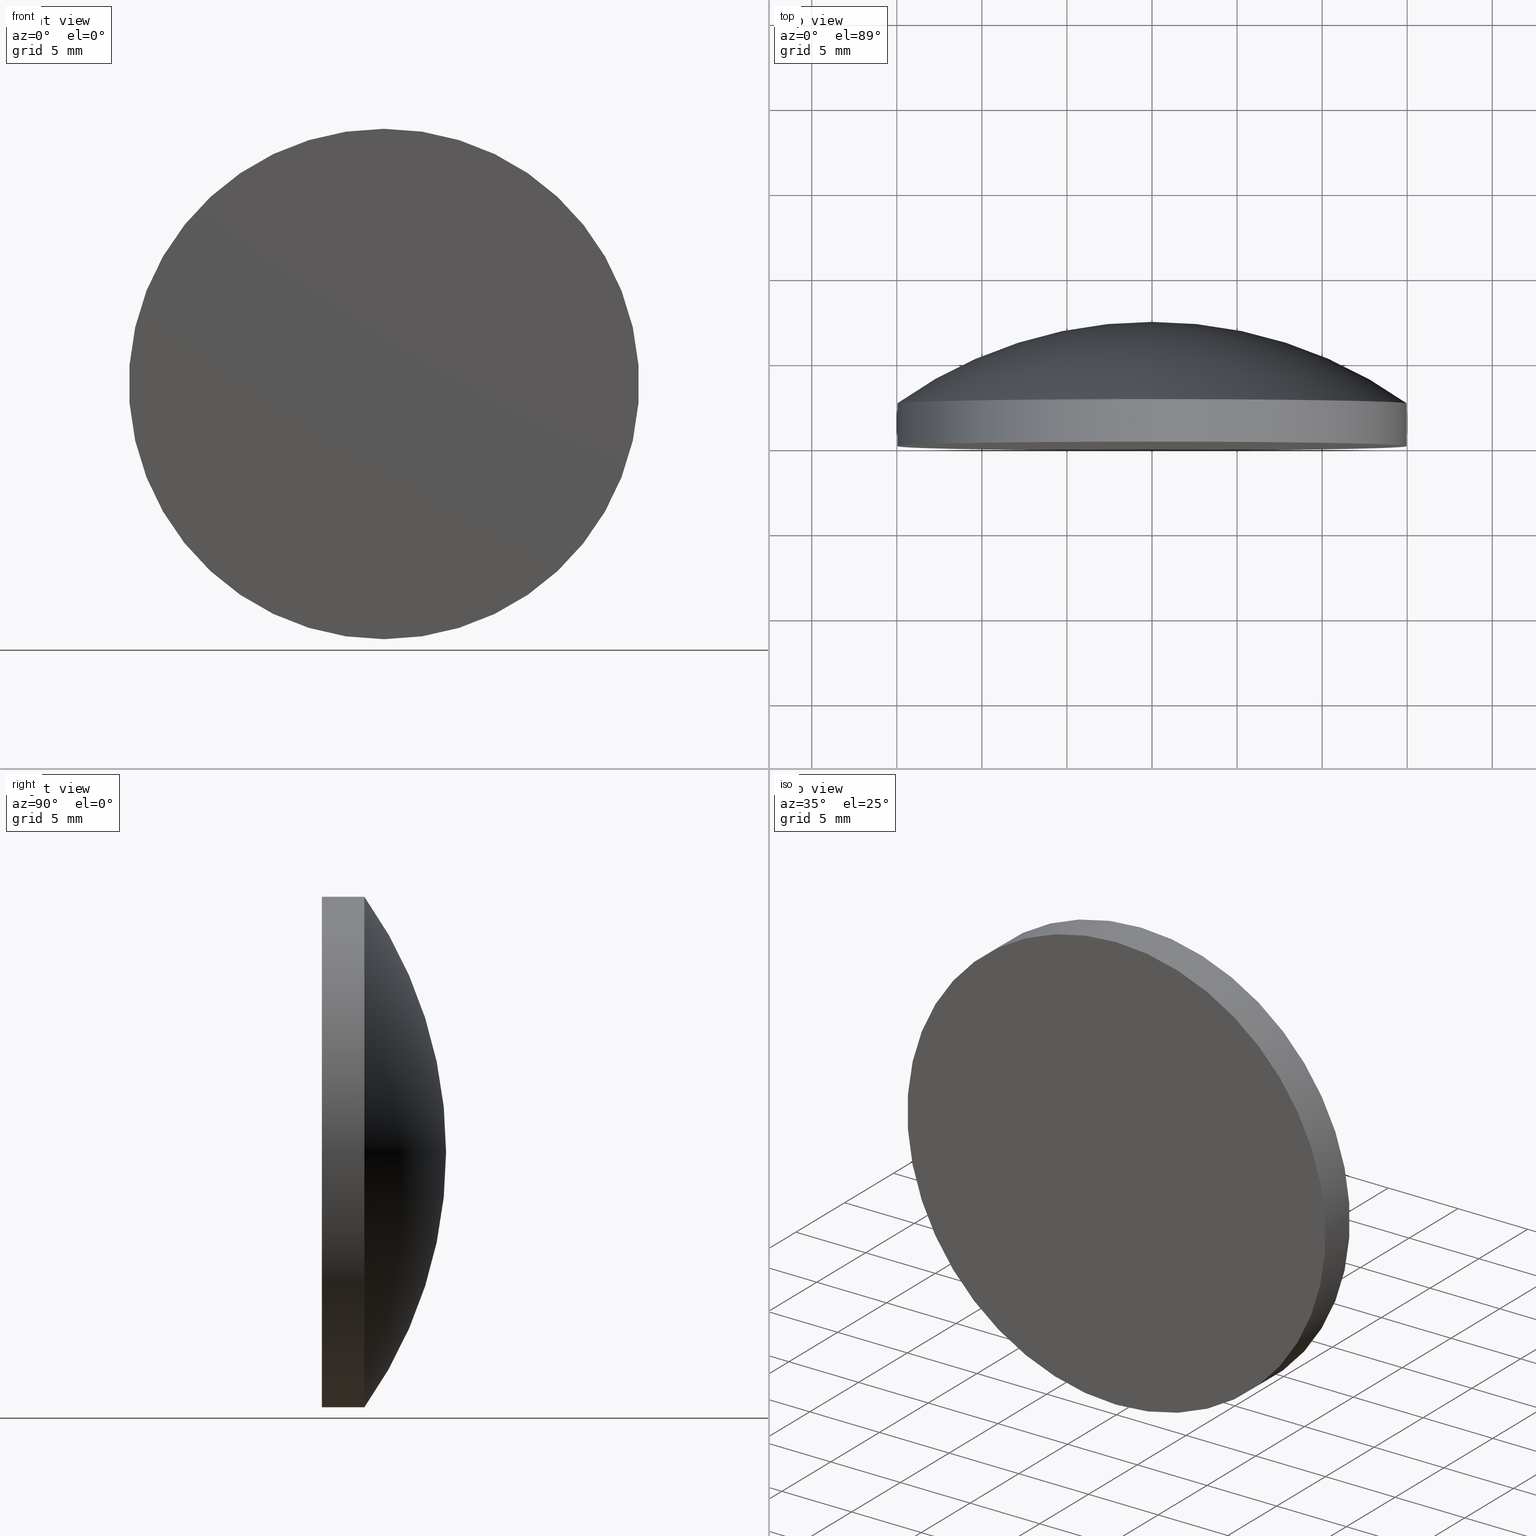
[diagram: canonical four-view strip — front | top / right | iso, engineering-drawing reading convention]
A machine part, canonical four-view strip (front | top / right | iso — engineering-drawing reading convention). The complete STEP part file that produces these views, byte-faithful:
ISO-10303-21;
HEADER;
FILE_DESCRIPTION (( 'STEP AP203' ),
    '1' );
FILE_NAME ('100595.STEP',
    '2024-05-10T01:53:44',
    ( '' ),
    ( '' ),
    'SwSTEP 2.0',
    'SolidWorks 2020',
    '' );
FILE_SCHEMA (( 'CONFIG_CONTROL_DESIGN' ));
ENDSEC;

DATA;
#1 = CIRCLE ( 'NONE', #146, 15.00000000000000000 ) ;
#2 = CC_DESIGN_APPROVAL ( #77, ( #112 ) ) ;
#3 = DIRECTION ( 'NONE',  ( 1.000000000000000000, 0.000000000000000000, 1.224646799147353207E-16 ) ) ;
#4 = VERTEX_POINT ( 'NONE', #62 ) ;
#5 = CARTESIAN_POINT ( 'NONE',  ( 0.000000000000000000, 2.499999999999998224, 15.00000000000000178 ) ) ;
#6 = DIRECTION ( 'NONE',  ( -0.000000000000000000, 1.000000000000000000, -0.000000000000000000 ) ) ;
#7 = APPROVAL_STATUS ( 'not_yet_approved' ) ;
#8 = PERSON_AND_ORGANIZATION ( #15, #194 ) ;
#9 = ORIENTED_EDGE ( 'NONE', *, *, #199, .T. ) ;
#10 = LINE ( 'NONE', #179, #184 ) ;
#11 = APPROVAL_ROLE ( '' ) ;
#12 = ORIENTED_EDGE ( 'NONE', *, *, #161, .F. ) ;
#13 = DIRECTION ( 'NONE',  ( 0.000000000000000000, 0.000000000000000000, 1.000000000000000000 ) ) ;
#14 = LOCAL_TIME ( 9, 53, 44.00000000000000000, #56 ) ;
#15 = PERSON ( 'δָ��', 'δָ��', 'δָ��', ('δָ��'), ('δָ��'), ('δָ��') ) ;
#16 = CARTESIAN_POINT ( 'NONE',  ( -9.797125862820881380E-20, -18.53999998761622692, 0.0007999960371955425198 ) ) ;
#17 = DIRECTION ( 'NONE',  ( 0.000000000000000000, 0.000000000000000000, 1.000000000000000000 ) ) ;
#18 = CLOSED_SHELL ( 'NONE', ( #71, #111, #36, #147, #94 ) ) ;
#19 = EDGE_CURVE ( 'NONE', #4, #167, #163, .T. ) ;
#20 =( NAMED_UNIT ( * ) PLANE_ANGLE_UNIT ( ) SI_UNIT ( $, .RADIAN. ) );
#21 = CARTESIAN_POINT ( 'NONE',  ( 0.000000000000000000, -1.734723475976807094E-15, 0.000000000000000000 ) ) ;
#22 = LOCAL_TIME ( 9, 53, 44.00000000000000000, #177 ) ;
#23 = DIRECTION ( 'NONE',  ( 0.000000000000000000, 0.000000000000000000, 1.000000000000000000 ) ) ;
#24 = EDGE_CURVE ( 'NONE', #4, #48, #83, .T. ) ;
#25 = CARTESIAN_POINT ( 'NONE',  ( 0.000000000000000000, -18.53999998761622692, -0.0007999960371955425198 ) ) ;
#26 = PERSON_AND_ORGANIZATION ( #15, #194 ) ;
#27 = EDGE_LOOP ( 'NONE', ( #160, #131, #118, #12 ) ) ;
#28 = APPROVAL_DATE_TIME ( #125, #35 ) ;
#29 = CIRCLE ( 'NONE', #76, 15.00000000000000000 ) ;
#30 = EDGE_LOOP ( 'NONE', ( #32, #133 ) ) ;
#31 = CARTESIAN_POINT ( 'NONE',  ( 0.000000000000000000, -18.53999998761622692, 0.000000000000000000 ) ) ;
#32 = ORIENTED_EDGE ( 'NONE', *, *, #24, .F. ) ;
#33 = CC_DESIGN_PERSON_AND_ORGANIZATION_ASSIGNMENT ( #106, #59, ( #112 ) ) ;
#34 = AXIS2_PLACEMENT_3D ( 'NONE', #16, #3, #65 ) ;
#35 = APPROVAL ( #7, 'δָ��' ) ;
#36 = ADVANCED_FACE ( 'NONE', ( #74 ), #72, .T. ) ;
#37 = APPLICATION_PROTOCOL_DEFINITION ( 'international standard', 'config_control_design', 1994, #95 ) ;
#38 = APPROVAL_STATUS ( 'not_yet_approved' ) ;
#39 = CC_DESIGN_PERSON_AND_ORGANIZATION_ASSIGNMENT ( #117, #169, ( #104 ) ) ;
#40 = DIRECTION ( 'NONE',  ( 1.000000000000000000, 0.000000000000000000, 0.000000000000000000 ) ) ;
#41 = APPROVAL_DATE_TIME ( #68, #43 ) ;
#42 = AXIS2_PLACEMENT_3D ( 'NONE', #79, #145, #99 ) ;
#43 = APPROVAL ( #124, 'δָ��' ) ;
#44 = CALENDAR_DATE ( 2024, 10, 5 ) ;
#45 = VERTEX_POINT ( 'NONE', #197 ) ;
#46 = APPROVAL_ROLE ( '' ) ;
#47 = LOCAL_TIME ( 9, 53, 44.00000000000000000, #58 ) ;
#48 = VERTEX_POINT ( 'NONE', #75 ) ;
#49 = PRODUCT_RELATED_PRODUCT_CATEGORY ( 'detail', '', ( #104 ) ) ;
#50 = PRODUCT_DEFINITION_FORMATION_WITH_SPECIFIED_SOURCE ( '�κ�', '', #104, .NOT_KNOWN. ) ;
#51 = APPROVAL_PERSON_ORGANIZATION ( #26, #77, #11 ) ;
#52 = DIRECTION ( 'NONE',  ( 0.000000000000000000, -1.000000000000000000, 0.000000000000000000 ) ) ;
#53 = DIRECTION ( 'NONE',  ( 0.000000000000000000, 0.000000000000000000, 1.000000000000000000 ) ) ;
#54 = CC_DESIGN_PERSON_AND_ORGANIZATION_ASSIGNMENT ( #87, #85, ( #50 ) ) ;
#55 = APPROVAL_PERSON_ORGANIZATION ( #144, #35, #134 ) ;
#56 = COORDINATED_UNIVERSAL_TIME_OFFSET ( 8, 0, .AHEAD. ) ;
#57 = COORDINATED_UNIVERSAL_TIME_OFFSET ( 8, 0, .AHEAD. ) ;
#58 = COORDINATED_UNIVERSAL_TIME_OFFSET ( 8, 0, .AHEAD. ) ;
#59 = PERSON_AND_ORGANIZATION_ROLE ( 'classification_officer' ) ;
#60 = CIRCLE ( 'NONE', #142, 25.84000000000000696 ) ;
#61 = AXIS2_PLACEMENT_3D ( 'NONE', #141, #200, #127 ) ;
#62 = CARTESIAN_POINT ( 'NONE',  ( 0.000000000000000000, -1.734723475976807094E-15, 15.00000000000000000 ) ) ;
#63 = CARTESIAN_POINT ( 'NONE',  ( 0.000000000000000000, 7.299999999999999822, 15.00000000000000000 ) ) ;
#64 = CARTESIAN_POINT ( 'NONE',  ( 0.000000000000000000, -9.184850993605147944E-16, 0.000000000000000000 ) ) ;
#65 = DIRECTION ( 'NONE',  ( 1.224646799147353207E-16, 0.000000000000000000, -1.000000000000000000 ) ) ;
#66 = APPLICATION_CONTEXT ( 'configuration controlled 3d designs of mechanical parts and assemblies' ) ;
#67 = AXIS2_PLACEMENT_3D ( 'NONE', #96, #155, #17 ) ;
#68 = DATE_AND_TIME ( #123, #165 ) ;
#69 = CARTESIAN_POINT ( 'NONE',  ( 0.000000000000000000, -18.53999998761622692, 0.000000000000000000 ) ) ;
#70 = DIRECTION ( 'NONE',  ( 0.000000000000000000, 0.000000000000000000, 1.000000000000000000 ) ) ;
#71 = ADVANCED_FACE ( 'NONE', ( #126 ), #93, .T. ) ;
#72 = TOROIDAL_SURFACE ( 'NONE', #170, -0.0007999960371955425198, 25.84000000000000696 ) ;
#73 = ORIENTED_EDGE ( 'NONE', *, *, #143, .T. ) ;
#74 = FACE_OUTER_BOUND ( 'NONE', #152, .T. ) ;
#75 = CARTESIAN_POINT ( 'NONE',  ( 1.836970198721029589E-15, -1.734723475976807094E-15, -15.00000000000000000 ) ) ;
#76 = AXIS2_PLACEMENT_3D ( 'NONE', #21, #6, #171 ) ;
#77 = APPROVAL ( #38, 'δָ��' ) ;
#78 = PLANE ( 'NONE',  #178 ) ;
#79 = CARTESIAN_POINT ( 'NONE',  ( 0.000000000000000000, 2.499999999999997780, 0.000000000000000000 ) ) ;
#80 = ORIENTED_EDGE ( 'NONE', *, *, #132, .F. ) ;
#81 = DATE_AND_TIME ( #44, #47 ) ;
#82 = FACE_OUTER_BOUND ( 'NONE', #27, .T. ) ;
#83 = CIRCLE ( 'NONE', #154, 15.00000000000000000 ) ;
#84 =( LENGTH_UNIT ( ) NAMED_UNIT ( * ) SI_UNIT ( .MILLI., .METRE. ) );
#85 = PERSON_AND_ORGANIZATION_ROLE ( 'design_supplier' ) ;
#86 = CC_DESIGN_PERSON_AND_ORGANIZATION_ASSIGNMENT ( #136, #120, ( #50 ) ) ;
#87 = PERSON_AND_ORGANIZATION ( #15, #194 ) ;
#88 = ADVANCED_BREP_SHAPE_REPRESENTATION ( '100595', ( #148, #164 ), #201 ) ;
#89 = UNCERTAINTY_MEASURE_WITH_UNIT (LENGTH_MEASURE( 1.000000000000000082E-05 ), #84, 'distance_accuracy_value', 'NONE');
#90 = CIRCLE ( 'NONE', #34, 25.84000000000000696 ) ;
#91 = DIRECTION ( 'NONE',  ( -0.000000000000000000, 1.000000000000000000, -0.000000000000000000 ) ) ;
#92 = CC_DESIGN_SECURITY_CLASSIFICATION ( #112, ( #50 ) ) ;
#93 = CYLINDRICAL_SURFACE ( 'NONE', #61, 15.00000000000000000 ) ;
#94 = ADVANCED_FACE ( 'NONE', ( #82 ), #168, .T. ) ;
#95 = APPLICATION_CONTEXT ( 'configuration controlled 3d designs of mechanical parts and assemblies' ) ;
#96 = CARTESIAN_POINT ( 'NONE',  ( 0.000000000000000000, 7.299999999999999822, 0.000000000000000000 ) ) ;
#97 = APPLICATION_PROTOCOL_DEFINITION ( 'international standard', 'config_control_design', 1994, #66 ) ;
#98 = DATE_AND_TIME ( #176, #182 ) ;
#99 = DIRECTION ( 'NONE',  ( 0.000000000000000000, 0.000000000000000000, 1.000000000000000000 ) ) ;
#100 = ORIENTED_EDGE ( 'NONE', *, *, #143, .F. ) ;
#101 = MECHANICAL_CONTEXT ( 'NONE', #66, 'mechanical' ) ;
#102 = APPROVAL_DATE_TIME ( #98, #77 ) ;
#103 = DATE_AND_TIME ( #172, #22 ) ;
#104 = PRODUCT ( '100595', '100595', '', ( #101 ) ) ;
#105 = ORIENTED_EDGE ( 'NONE', *, *, #161, .T. ) ;
#106 = PERSON_AND_ORGANIZATION ( #15, #194 ) ;
#107 = ORIENTED_EDGE ( 'NONE', *, *, #19, .F. ) ;
#108 = EDGE_CURVE ( 'NONE', #48, #4, #29, .T. ) ;
#109 = CC_DESIGN_APPROVAL ( #35, ( #157 ) ) ;
#110 = DIRECTION ( 'NONE',  ( -0.000000000000000000, 1.000000000000000000, -0.000000000000000000 ) ) ;
#111 = ADVANCED_FACE ( 'NONE', ( #185 ), #190, .T. ) ;
#112 = SECURITY_CLASSIFICATION ( '', '', #193 ) ;
#113 = VECTOR ( 'NONE', #153, 1000.000000000000000 ) ;
#114 = DIRECTION ( 'NONE',  ( 0.000000000000000000, -0.000000000000000000, -1.000000000000000000 ) ) ;
#115 = ORIENTED_EDGE ( 'NONE', *, *, #132, .T. ) ;
#116 = AXIS2_PLACEMENT_3D ( 'NONE', #69, #121, #173 ) ;
#117 = PERSON_AND_ORGANIZATION ( #15, #194 ) ;
#118 = ORIENTED_EDGE ( 'NONE', *, *, #19, .T. ) ;
#119 = CALENDAR_DATE ( 2024, 10, 5 ) ;
#120 = PERSON_AND_ORGANIZATION_ROLE ( 'creator' ) ;
#121 = DIRECTION ( 'NONE',  ( -0.000000000000000000, 1.000000000000000000, -0.000000000000000000 ) ) ;
#122 = CARTESIAN_POINT ( 'NONE',  ( 0.000000000000000000, 0.000000000000000000, 0.000000000000000000 ) ) ;
#123 = CALENDAR_DATE ( 2024, 10, 5 ) ;
#124 = APPROVAL_STATUS ( 'not_yet_approved' ) ;
#125 = DATE_AND_TIME ( #119, #14 ) ;
#126 = FACE_OUTER_BOUND ( 'NONE', #175, .T. ) ;
#127 = DIRECTION ( 'NONE',  ( 0.000000000000000000, 0.000000000000000000, 1.000000000000000000 ) ) ;
#128 = CARTESIAN_POINT ( 'NONE',  ( 0.000000000000000000, -1.734723475976807094E-15, 0.000000000000000000 ) ) ;
#129 = CC_DESIGN_DATE_AND_TIME_ASSIGNMENT ( #81, #151, ( #157 ) ) ;
#130 = FACE_OUTER_BOUND ( 'NONE', #30, .T. ) ;
#131 = ORIENTED_EDGE ( 'NONE', *, *, #108, .T. ) ;
#132 = EDGE_CURVE ( 'NONE', #167, #45, #138, .T. ) ;
#133 = ORIENTED_EDGE ( 'NONE', *, *, #108, .F. ) ;
#134 = APPROVAL_ROLE ( '' ) ;
#135 = DIRECTION ( 'NONE',  ( -1.000000000000000000, 0.000000000000000000, 0.000000000000000000 ) ) ;
#136 = PERSON_AND_ORGANIZATION ( #15, #194 ) ;
#137 = DIRECTION ( 'NONE',  ( -0.000000000000000000, 1.000000000000000000, -0.000000000000000000 ) ) ;
#138 = CIRCLE ( 'NONE', #42, 15.00000000000000000 ) ;
#139 = DESIGN_CONTEXT ( 'detailed design', #95, 'design' ) ;
#140 = CC_DESIGN_DATE_AND_TIME_ASSIGNMENT ( #103, #187, ( #112 ) ) ;
#141 = CARTESIAN_POINT ( 'NONE',  ( 0.000000000000000000, 7.299999999999999822, 0.000000000000000000 ) ) ;
#142 = AXIS2_PLACEMENT_3D ( 'NONE', #25, #135, #23 ) ;
#143 = EDGE_CURVE ( 'NONE', #45, #192, #90, .T. ) ;
#144 = PERSON_AND_ORGANIZATION ( #15, #194 ) ;
#145 = DIRECTION ( 'NONE',  ( -0.000000000000000000, 1.000000000000000000, -0.000000000000000000 ) ) ;
#146 = AXIS2_PLACEMENT_3D ( 'NONE', #166, #183, #53 ) ;
#147 = ADVANCED_FACE ( 'NONE', ( #130 ), #78, .T. ) ;
#148 = MANIFOLD_SOLID_BREP ( '��ת1', #18 ) ;
#149 = ORIENTED_EDGE ( 'NONE', *, *, #199, .F. ) ;
#150 = COORDINATED_UNIVERSAL_TIME_OFFSET ( 8, 0, .AHEAD. ) ;
#151 = DATE_TIME_ROLE ( 'creation_date' ) ;
#152 = EDGE_LOOP ( 'NONE', ( #100, #105, #9 ) ) ;
#153 = DIRECTION ( 'NONE',  ( -0.000000000000000000, 1.000000000000000000, -0.000000000000000000 ) ) ;
#154 = AXIS2_PLACEMENT_3D ( 'NONE', #128, #110, #180 ) ;
#155 = DIRECTION ( 'NONE',  ( -0.000000000000000000, 1.000000000000000000, -0.000000000000000000 ) ) ;
#156 = ORIENTED_EDGE ( 'NONE', *, *, #181, .T. ) ;
#157 = PRODUCT_DEFINITION ( 'δ֪', '', #50, #139 ) ;
#158 = APPROVAL_PERSON_ORGANIZATION ( #174, #43, #46 ) ;
#159 = SHAPE_DEFINITION_REPRESENTATION ( #191, #88 ) ;
#160 = ORIENTED_EDGE ( 'NONE', *, *, #181, .F. ) ;
#161 = EDGE_CURVE ( 'NONE', #45, #167, #1, .T. ) ;
#162 = ORIENTED_EDGE ( 'NONE', *, *, #24, .T. ) ;
#163 = LINE ( 'NONE', #63, #113 ) ;
#164 = AXIS2_PLACEMENT_3D ( 'NONE', #122, #70, #40 ) ;
#165 = LOCAL_TIME ( 9, 53, 44.00000000000000000, #150 ) ;
#166 = CARTESIAN_POINT ( 'NONE',  ( 0.000000000000000000, 2.499999999999997780, 0.000000000000000000 ) ) ;
#167 = VERTEX_POINT ( 'NONE', #5 ) ;
#168 = CYLINDRICAL_SURFACE ( 'NONE', #67, 15.00000000000000000 ) ;
#169 = PERSON_AND_ORGANIZATION_ROLE ( 'design_owner' ) ;
#170 = AXIS2_PLACEMENT_3D ( 'NONE', #31, #91, #13 ) ;
#171 = DIRECTION ( 'NONE',  ( 0.000000000000000000, 0.000000000000000000, 1.000000000000000000 ) ) ;
#172 = CALENDAR_DATE ( 2024, 10, 5 ) ;
#173 = DIRECTION ( 'NONE',  ( 0.000000000000000000, 0.000000000000000000, 1.000000000000000000 ) ) ;
#174 = PERSON_AND_ORGANIZATION ( #15, #194 ) ;
#175 = EDGE_LOOP ( 'NONE', ( #162, #156, #80, #107 ) ) ;
#176 = CALENDAR_DATE ( 2024, 10, 5 ) ;
#177 = COORDINATED_UNIVERSAL_TIME_OFFSET ( 8, 0, .AHEAD. ) ;
#178 = AXIS2_PLACEMENT_3D ( 'NONE', #64, #52, #114 ) ;
#179 = CARTESIAN_POINT ( 'NONE',  ( 1.836970198721029589E-15, 7.299999999999999822, -15.00000000000000000 ) ) ;
#180 = DIRECTION ( 'NONE',  ( 0.000000000000000000, 0.000000000000000000, 1.000000000000000000 ) ) ;
#181 = EDGE_CURVE ( 'NONE', #48, #45, #10, .T. ) ;
#182 = LOCAL_TIME ( 9, 53, 44.00000000000000000, #57 ) ;
#183 = DIRECTION ( 'NONE',  ( -0.000000000000000000, 1.000000000000000000, -0.000000000000000000 ) ) ;
#184 = VECTOR ( 'NONE', #137, 1000.000000000000000 ) ;
#185 = FACE_OUTER_BOUND ( 'NONE', #188, .T. ) ;
#186 =( NAMED_UNIT ( * ) SI_UNIT ( $, .STERADIAN. ) SOLID_ANGLE_UNIT ( ) );
#187 = DATE_TIME_ROLE ( 'classification_date' ) ;
#188 = EDGE_LOOP ( 'NONE', ( #115, #73, #149 ) ) ;
#189 = PERSON_AND_ORGANIZATION_ROLE ( 'creator' ) ;
#190 = TOROIDAL_SURFACE ( 'NONE', #116, -0.0007999960371955425198, 25.84000000000000696 ) ;
#191 = PRODUCT_DEFINITION_SHAPE ( 'NONE', 'NONE',  #157 ) ;
#192 = VERTEX_POINT ( 'NONE', #198 ) ;
#193 = SECURITY_CLASSIFICATION_LEVEL ( 'unclassified' ) ;
#194 = ORGANIZATION ( 'δָ��', 'δָ��', '' ) ;
#195 = CC_DESIGN_APPROVAL ( #43, ( #50 ) ) ;
#196 = CC_DESIGN_PERSON_AND_ORGANIZATION_ASSIGNMENT ( #8, #189, ( #157 ) ) ;
#197 = CARTESIAN_POINT ( 'NONE',  ( 1.836970198721029589E-15, 2.499999999999998224, -15.00000000000000178 ) ) ;
#198 = CARTESIAN_POINT ( 'NONE',  ( 0.000000000000000000, 7.299999999999999822, 0.000000000000000000 ) ) ;
#199 = EDGE_CURVE ( 'NONE', #167, #192, #60, .T. ) ;
#200 = DIRECTION ( 'NONE',  ( -0.000000000000000000, 1.000000000000000000, -0.000000000000000000 ) ) ;
#201 =( GEOMETRIC_REPRESENTATION_CONTEXT ( 3 ) GLOBAL_UNCERTAINTY_ASSIGNED_CONTEXT ( ( #89 ) ) GLOBAL_UNIT_ASSIGNED_CONTEXT ( ( #84, #20, #186 ) ) REPRESENTATION_CONTEXT ( 'NONE', 'WORKASPACE' ) );
ENDSEC;
END-ISO-10303-21;
